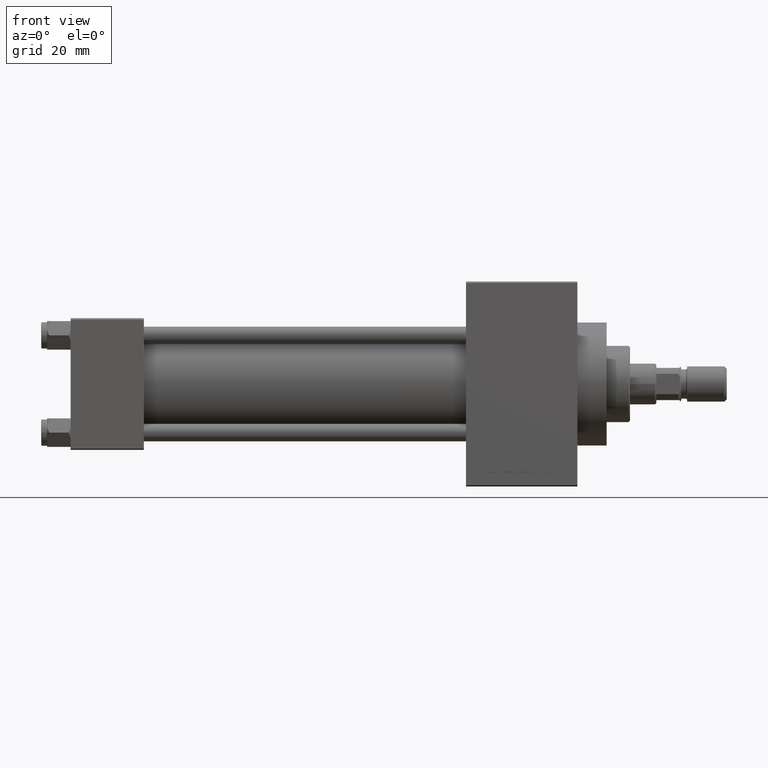
[diagram: clean part render]
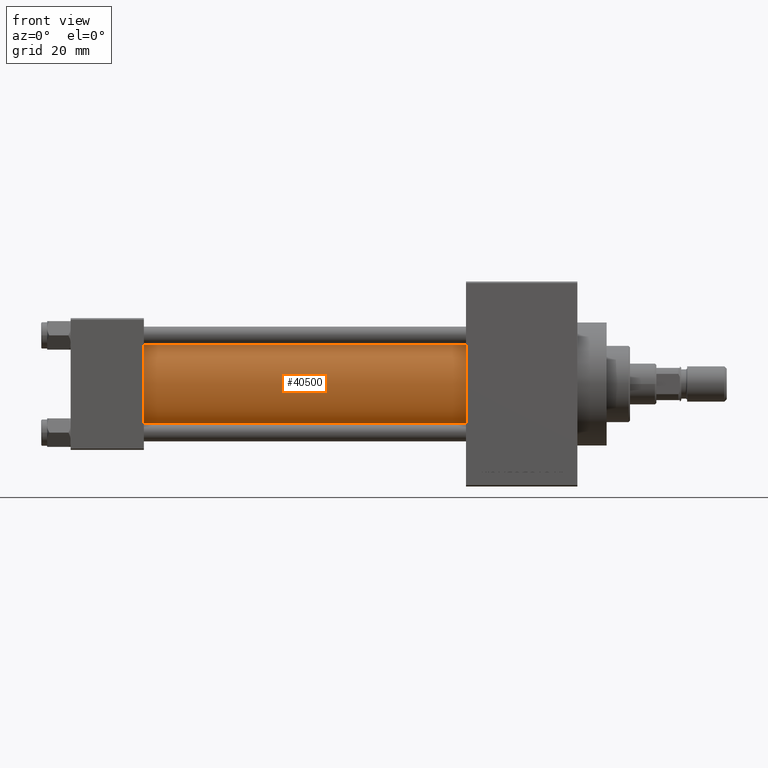
[diagram: same view with one face highlighted and labeled with its STEP entity id]
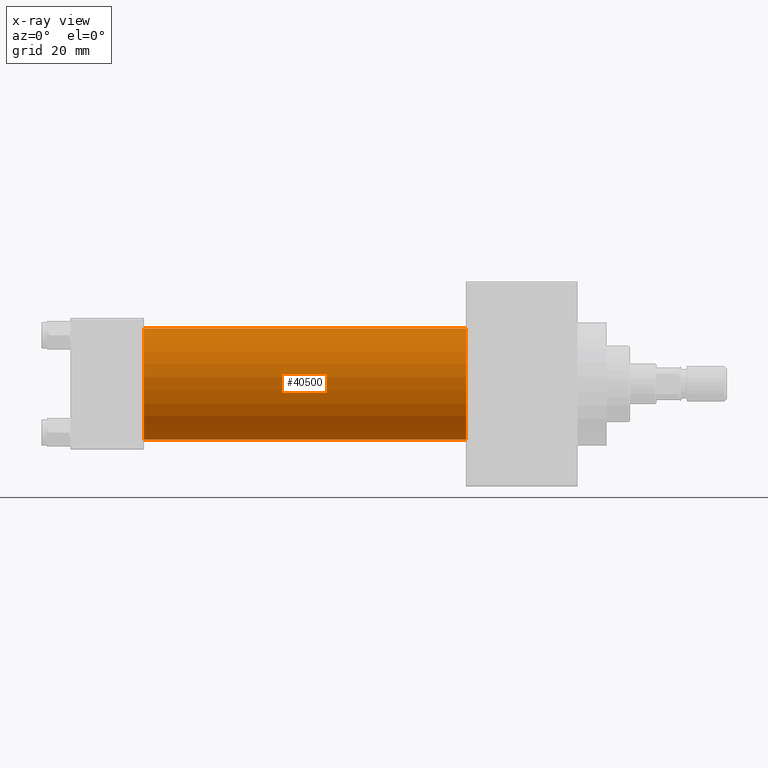
[diagram: x-ray of the same camera — body ghosted, the highlighted face saturated]
A machine part, front view. The second image highlights one B-rep face of the part: STEP entity #40500.
The next image is the same camera in x-ray: the body ghosted, the highlighted face saturated — about 0% of this face is hidden behind the body in this view.
In plain terms, the highlighted cylindrical surface (partial cylindrical patch) has radius 19 mm, axis along (-1, -0, -0).
Its self-contained STEP definition (entity closure, byte-faithful):
#921 = ORIENTED_EDGE ( 'NONE', *, *, #12315, .F. ) ;
#1742 = EDGE_CURVE ( 'NONE', #17232, #37782, #47166, .T. ) ;
#2086 = DIRECTION ( 'NONE',  ( -1.000000000000000000, -0.000000000000000000, -0.000000000000000000 ) ) ;
#3320 = CARTESIAN_POINT ( 'NONE',  ( 135.0000000000000000, -2.752562955852396712E-16, -19.00000000000000000 ) ) ;
#3551 = CYLINDRICAL_SURFACE ( 'NONE', #5929, 19.00000000000000000 ) ;
#4230 = VECTOR ( 'NONE', #18165, 1000.000000000000000 ) ;
#4579 = DIRECTION ( 'NONE',  ( 1.000000000000000000, -0.000000000000000000, 0.000000000000000000 ) ) ;
#5929 = AXIS2_PLACEMENT_3D ( 'NONE', #26604, #30605, #11574 ) ;
#8224 = ORIENTED_EDGE ( 'NONE', *, *, #36823, .F. ) ;
#8815 = EDGE_LOOP ( 'NONE', ( #8224, #921, #18332, #10141 ) ) ;
#10141 = ORIENTED_EDGE ( 'NONE', *, *, #30384, .T. ) ;
#10286 = VECTOR ( 'NONE', #2086, 1000.000000000000000 ) ;
#11387 = VERTEX_POINT ( 'NONE', #3320 ) ;
#11574 = DIRECTION ( 'NONE',  ( 0.000000000000000000, 0.000000000000000000, 1.000000000000000000 ) ) ;
#12315 = EDGE_CURVE ( 'NONE', #17232, #11387, #23351, .T. ) ;
#12834 = DIRECTION ( 'NONE',  ( 0.000000000000000000, 0.000000000000000000, 1.000000000000000000 ) ) ;
#13569 = VERTEX_POINT ( 'NONE', #45817 ) ;
#17232 = VERTEX_POINT ( 'NONE', #40379 ) ;
#18165 = DIRECTION ( 'NONE',  ( -1.000000000000000000, -0.000000000000000000, -0.000000000000000000 ) ) ;
#18332 = ORIENTED_EDGE ( 'NONE', *, *, #1742, .T. ) ;
#20472 = DIRECTION ( 'NONE',  ( 0.000000000000000000, 0.000000000000000000, -1.000000000000000000 ) ) ;
#20707 = DIRECTION ( 'NONE',  ( 1.000000000000000000, 0.000000000000000000, 0.000000000000000000 ) ) ;
#22604 = FACE_OUTER_BOUND ( 'NONE', #8815, .T. ) ;
#23351 = CIRCLE ( 'NONE', #28124, 19.00000000000000000 ) ;
#26604 = CARTESIAN_POINT ( 'NONE',  ( 135.0000000000000000, -2.602085213965210642E-15, 0.000000000000000000 ) ) ;
#26908 = CARTESIAN_POINT ( 'NONE',  ( 24.99999999999999289, -2.602085213965210642E-15, 19.00000000000000000 ) ) ;
#28124 = AXIS2_PLACEMENT_3D ( 'NONE', #40212, #20707, #20472 ) ;
#30384 = EDGE_CURVE ( 'NONE', #37782, #13569, #32869, .T. ) ;
#30481 = AXIS2_PLACEMENT_3D ( 'NONE', #46632, #4579, #12834 ) ;
#30605 = DIRECTION ( 'NONE',  ( -1.000000000000000000, -0.000000000000000000, -0.000000000000000000 ) ) ;
#32869 = CIRCLE ( 'NONE', #30481, 19.00000000000000000 ) ;
#36823 = EDGE_CURVE ( 'NONE', #11387, #13569, #37413, .T. ) ;
#37413 = LINE ( 'NONE', #49180, #4230 ) ;
#37782 = VERTEX_POINT ( 'NONE', #26908 ) ;
#40157 = CARTESIAN_POINT ( 'NONE',  ( 135.0000000000000000, -2.602085213965210642E-15, 19.00000000000000000 ) ) ;
#40212 = CARTESIAN_POINT ( 'NONE',  ( 135.0000000000000000, -2.602085213965210642E-15, 0.000000000000000000 ) ) ;
#40379 = CARTESIAN_POINT ( 'NONE',  ( 135.0000000000000000, -2.602085213965210642E-15, 19.00000000000000000 ) ) ;
#40500 = ADVANCED_FACE ( 'NONE', ( #22604 ), #3551, .T. ) ;
#45817 = CARTESIAN_POINT ( 'NONE',  ( 24.99999999999999289, -2.752562955852396712E-16, -19.00000000000000000 ) ) ;
#46632 = CARTESIAN_POINT ( 'NONE',  ( 24.99999999999999289, -2.602085213965210642E-15, 0.000000000000000000 ) ) ;
#47166 = LINE ( 'NONE', #40157, #10286 ) ;
#49180 = CARTESIAN_POINT ( 'NONE',  ( 135.0000000000000000, -2.752562955852396712E-16, -19.00000000000000000 ) ) ;